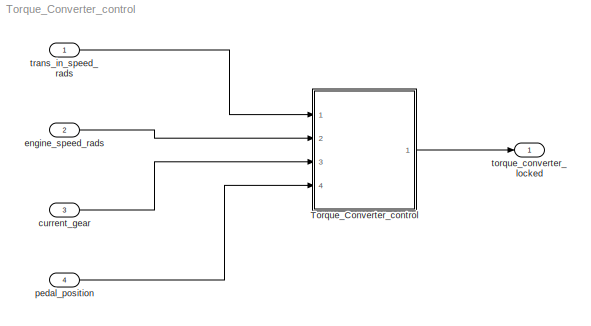
MODEL Torque_Converter_control
KIND model
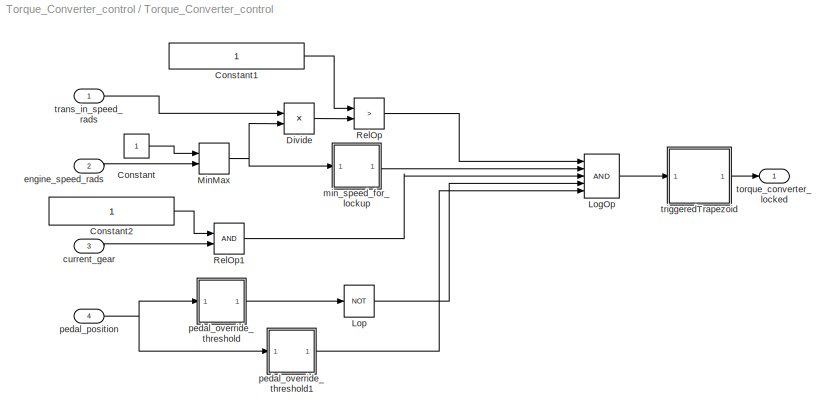
BLOCK [SubSystem] Torque_Converter_control
  FunctionWithSeparateData = off
  MaskHideContents = off
  MinAlgLoopOccurrences = off
  Opaque = off
  Ports = [4, 1]
  PropExecContextOutsideSubsystem = off
  RTWSystemCode = Auto
  RequestExecContextInheritance = off
  SID = 49
BLOCK [Constant] Torque_Converter_control/Constant
  SID = 6
BLOCK [Constant] Torque_Converter_control/Constant1
  SID = 10
BLOCK [Constant] Torque_Converter_control/Constant2
  SID = 24
BLOCK [Product] Torque_Converter_control/Divide
  InputSameDT = off
  Inputs = */
  OutDataTypeStr = Inherit: Inherit via internal rule
  Ports = [2, 1]
  RndMeth = Floor
  SID = 8
  SaturateOnIntegerOverflow = off
BLOCK [Logic] Torque_Converter_control/LogOp
  AllPortsSameDT = off
  Inputs = 5
  OutDataTypeStr = boolean
  Ports = [5, 1]
  SID = 11
BLOCK [Logic] Torque_Converter_control/Lop
  AllPortsSameDT = off
  Operator = NOT
  OutDataTypeStr = boolean
  Ports = [1, 1]
  SID = 26
BLOCK [MinMax] Torque_Converter_control/MinMax
  Function = max
  InputSameDT = off
  Inputs = 2
  Ports = [2, 1]
  SID = 7
  SaturateOnIntegerOverflow = off
BLOCK [RelationalOperator] Torque_Converter_control/RelOp
  InputSameDT = off
  Operator = >
  OutDataTypeStr = boolean
  Ports = [2, 1]
  SID = 9
BLOCK [RelationalOperator] Torque_Converter_control/RelOp1
  InputSameDT = off
  OutDataTypeStr = boolean
  Ports = [2, 1]
  SID = 25
BLOCK [Inport] Torque_Converter_control/current_gear
  IconDisplay = Port number
  OutDataTypeStr = int32
  Port = 3
  SID = 57
BLOCK [Inport] Torque_Converter_control/engine_speed_rads
  IconDisplay = Port number
  OutDataTypeStr = double
  Port = 2
  SID = 56
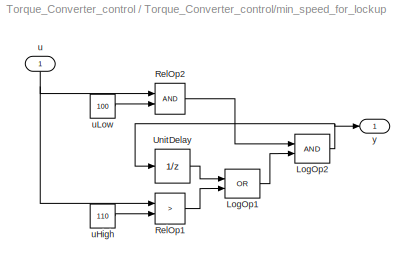
BLOCK [SubSystem] Torque_Converter_control/min_speed_for_lockup
  FunctionWithSeparateData = off
  MaskHideContents = off
  MinAlgLoopOccurrences = off
  Opaque = off
  Ports = [1, 1]
  PropExecContextOutsideSubsystem = off
  RTWSystemCode = Auto
  RequestExecContextInheritance = off
  SID = 21
BLOCK [Logic] Torque_Converter_control/min_speed_for_lockup/LogOp1
  AllPortsSameDT = off
  Operator = OR
  OutDataTypeStr = boolean
  Ports = [2, 1]
  SID = 18
BLOCK [Logic] Torque_Converter_control/min_speed_for_lockup/LogOp2
  AllPortsSameDT = off
  OutDataTypeStr = boolean
  Ports = [2, 1]
  SID = 20
BLOCK [RelationalOperator] Torque_Converter_control/min_speed_for_lockup/RelOp1
  InputSameDT = off
  Operator = >
  OutDataTypeStr = boolean
  Ports = [2, 1]
  SID = 15
BLOCK [RelationalOperator] Torque_Converter_control/min_speed_for_lockup/RelOp2
  InputSameDT = off
  OutDataTypeStr = boolean
  Ports = [2, 1]
  SID = 16
BLOCK [UnitDelay] Torque_Converter_control/min_speed_for_lockup/UnitDelay
  InputProcessing = Elements as channels (sample based)
  SID = 19
  SampleTime = -1
BLOCK [Inport] Torque_Converter_control/min_speed_for_lockup/u
  IconDisplay = Port number
  SID = 23
BLOCK [Constant] Torque_Converter_control/min_speed_for_lockup/uHigh
  SID = 13
  Value = 110
BLOCK [Constant] Torque_Converter_control/min_speed_for_lockup/uLow
  SID = 12
  Value = 100
BLOCK [Outport] Torque_Converter_control/min_speed_for_lockup/y
  IconDisplay = Port number
  SID = 22
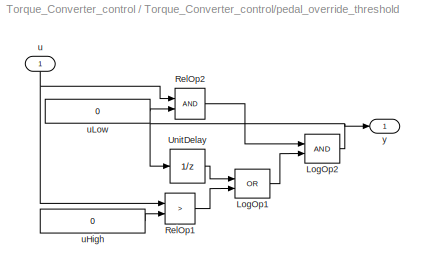
BLOCK [SubSystem] Torque_Converter_control/pedal_override_threshold
  FunctionWithSeparateData = off
  MaskHideContents = off
  MinAlgLoopOccurrences = off
  Opaque = off
  Ports = [1, 1]
  PropExecContextOutsideSubsystem = off
  RTWSystemCode = Auto
  RequestExecContextInheritance = off
  SID = 27
BLOCK [Logic] Torque_Converter_control/pedal_override_threshold/LogOp1
  AllPortsSameDT = off
  Operator = OR
  OutDataTypeStr = boolean
  Ports = [2, 1]
  SID = 29
BLOCK [Logic] Torque_Converter_control/pedal_override_threshold/LogOp2
  AllPortsSameDT = off
  OutDataTypeStr = boolean
  Ports = [2, 1]
  SID = 30
BLOCK [RelationalOperator] Torque_Converter_control/pedal_override_threshold/RelOp1
  InputSameDT = off
  Operator = >
  OutDataTypeStr = boolean
  Ports = [2, 1]
  SID = 31
BLOCK [RelationalOperator] Torque_Converter_control/pedal_override_threshold/RelOp2
  InputSameDT = off
  OutDataTypeStr = boolean
  Ports = [2, 1]
  SID = 32
BLOCK [UnitDelay] Torque_Converter_control/pedal_override_threshold/UnitDelay
  InputProcessing = Elements as channels (sample based)
  SID = 33
  SampleTime = -1
BLOCK [Inport] Torque_Converter_control/pedal_override_threshold/u
  IconDisplay = Port number
  SID = 28
BLOCK [Constant] Torque_Converter_control/pedal_override_threshold/uHigh
  SID = 34
  Value = 0
BLOCK [Constant] Torque_Converter_control/pedal_override_threshold/uLow
  SID = 35
  Value = 0
BLOCK [Outport] Torque_Converter_control/pedal_override_threshold/y
  IconDisplay = Port number
  SID = 36
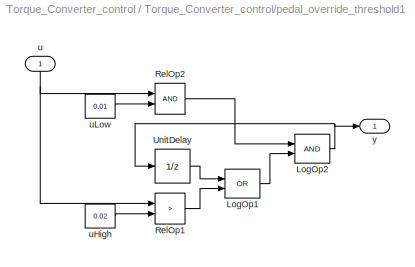
BLOCK [SubSystem] Torque_Converter_control/pedal_override_threshold1
  FunctionWithSeparateData = off
  MaskHideContents = off
  MinAlgLoopOccurrences = off
  Opaque = off
  Ports = [1, 1]
  PropExecContextOutsideSubsystem = off
  RTWSystemCode = Auto
  RequestExecContextInheritance = off
  SID = 37
BLOCK [Logic] Torque_Converter_control/pedal_override_threshold1/LogOp1
  AllPortsSameDT = off
  Operator = OR
  OutDataTypeStr = boolean
  Ports = [2, 1]
  SID = 39
BLOCK [Logic] Torque_Converter_control/pedal_override_threshold1/LogOp2
  AllPortsSameDT = off
  OutDataTypeStr = boolean
  Ports = [2, 1]
  SID = 40
BLOCK [RelationalOperator] Torque_Converter_control/pedal_override_threshold1/RelOp1
  InputSameDT = off
  Operator = >
  OutDataTypeStr = boolean
  Ports = [2, 1]
  SID = 41
BLOCK [RelationalOperator] Torque_Converter_control/pedal_override_threshold1/RelOp2
  InputSameDT = off
  OutDataTypeStr = boolean
  Ports = [2, 1]
  SID = 42
BLOCK [UnitDelay] Torque_Converter_control/pedal_override_threshold1/UnitDelay
  InputProcessing = Elements as channels (sample based)
  SID = 43
  SampleTime = -1
BLOCK [Inport] Torque_Converter_control/pedal_override_threshold1/u
  IconDisplay = Port number
  SID = 38
BLOCK [Constant] Torque_Converter_control/pedal_override_threshold1/uHigh
  SID = 44
  Value = 0.02
BLOCK [Constant] Torque_Converter_control/pedal_override_threshold1/uLow
  SID = 45
  Value = 0.01
BLOCK [Outport] Torque_Converter_control/pedal_override_threshold1/y
  IconDisplay = Port number
  SID = 46
BLOCK [Inport] Torque_Converter_control/pedal_position
  IconDisplay = Port number
  OutDataTypeStr = double
  Port = 4
  SID = 58
BLOCK [Outport] Torque_Converter_control/torque_converter_locked
  IconDisplay = Port number
  OutDataTypeStr = double
  SID = 59
BLOCK [Inport] Torque_Converter_control/trans_in_speed_rads
  IconDisplay = Port number
  OutDataTypeStr = double
  SID = 55
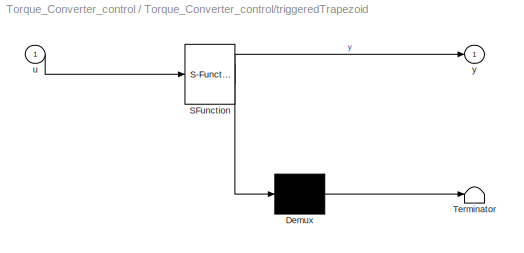
BLOCK [SubSystem] Torque_Converter_control/triggeredTrapezoid
  ErrorFcn = Stateflow.Translate.translate
  FunctionWithSeparateData = off
  MaskHideContents = off
  MinAlgLoopOccurrences = off
  Opaque = off
  PermitHierarchicalResolution = ExplicitOnly
  Ports = [1, 1]
  PropExecContextOutsideSubsystem = off
  RTWSystemCode = Auto
  RequestExecContextInheritance = off
  SFBlockType = Chart
  SID = 47
  TreatAsAtomicUnit = on
BLOCK [Demux] Torque_Converter_control/triggeredTrapezoid/ Demux 
  Outputs = 1
  Ports = [1, 1]
  SID = 47::36
BLOCK [S-Function] Torque_Converter_control/triggeredTrapezoid/ SFunction 
  EnableBusSupport = off
  FunctionName = sf_sfun
  PortCounts = [1 2]
  Ports = [1, 2]
  SID = 47::35
  Tag = Stateflow S-Function Torque_Converter_control 1
BLOCK [Terminator] Torque_Converter_control/triggeredTrapezoid/ Terminator 
  SID = 47::37
BLOCK [Inport] Torque_Converter_control/triggeredTrapezoid/u
  IconDisplay = Port number
  SID = 47::29
BLOCK [Outport] Torque_Converter_control/triggeredTrapezoid/y
  IconDisplay = Port number
  SID = 47::31
BLOCK [Inport] current_gear
  IconDisplay = Port number
  OutDataTypeStr = int32
  Port = 3
  SID = 3
BLOCK [Inport] engine_speed_rads
  IconDisplay = Port number
  OutDataTypeStr = double
  Port = 2
  SID = 2
BLOCK [Inport] pedal_position
  IconDisplay = Port number
  OutDataTypeStr = double
  Port = 4
  SID = 4
BLOCK [Outport] torque_converter_locked
  IconDisplay = Port number
  OutDataTypeStr = double
  SID = 5
BLOCK [Inport] trans_in_speed_rads
  IconDisplay = Port number
  OutDataTypeStr = double
  SID = 1
LINE Torque_Converter_control/Constant1:1 -> Torque_Converter_control/RelOp:1
LINE Torque_Converter_control/Constant2:1 -> Torque_Converter_control/RelOp1:1
LINE Torque_Converter_control/Constant:1 -> Torque_Converter_control/MinMax:1
LINE Torque_Converter_control/Divide:1 -> Torque_Converter_control/RelOp:2
LINE Torque_Converter_control/LogOp:1 -> Torque_Converter_control/triggeredTrapezoid:1
LINE Torque_Converter_control/Lop:1 -> Torque_Converter_control/LogOp:4
NET Torque_Converter_control/MinMax:1 -> Torque_Converter_control/Divide:2, Torque_Converter_control/min_speed_for_lockup:1
LINE Torque_Converter_control/RelOp1:1 -> Torque_Converter_control/LogOp:3
LINE Torque_Converter_control/RelOp:1 -> Torque_Converter_control/LogOp:1
LINE Torque_Converter_control/current_gear:1 -> Torque_Converter_control/RelOp1:2
LINE Torque_Converter_control/engine_speed_rads:1 -> Torque_Converter_control/MinMax:2
LINE Torque_Converter_control/min_speed_for_lockup/LogOp1:1 -> Torque_Converter_control/min_speed_for_lockup/LogOp2:2
NET Torque_Converter_control/min_speed_for_lockup/LogOp2:1 -> Torque_Converter_control/min_speed_for_lockup/UnitDelay:1, Torque_Converter_control/min_speed_for_lockup/y:1
LINE Torque_Converter_control/min_speed_for_lockup/RelOp1:1 -> Torque_Converter_control/min_speed_for_lockup/LogOp1:2
LINE Torque_Converter_control/min_speed_for_lockup/RelOp2:1 -> Torque_Converter_control/min_speed_for_lockup/LogOp2:1
LINE Torque_Converter_control/min_speed_for_lockup/UnitDelay:1 -> Torque_Converter_control/min_speed_for_lockup/LogOp1:1
NET Torque_Converter_control/min_speed_for_lockup/u:1 -> Torque_Converter_control/min_speed_for_lockup/RelOp1:1, Torque_Converter_control/min_speed_for_lockup/RelOp2:1
LINE Torque_Converter_control/min_speed_for_lockup/uHigh:1 -> Torque_Converter_control/min_speed_for_lockup/RelOp1:2
LINE Torque_Converter_control/min_speed_for_lockup/uLow:1 -> Torque_Converter_control/min_speed_for_lockup/RelOp2:2
LINE Torque_Converter_control/min_speed_for_lockup:1 -> Torque_Converter_control/LogOp:2
LINE Torque_Converter_control/pedal_override_threshold/LogOp1:1 -> Torque_Converter_control/pedal_override_threshold/LogOp2:2
NET Torque_Converter_control/pedal_override_threshold/LogOp2:1 -> Torque_Converter_control/pedal_override_threshold/UnitDelay:1, Torque_Converter_control/pedal_override_threshold/y:1
LINE Torque_Converter_control/pedal_override_threshold/RelOp1:1 -> Torque_Converter_control/pedal_override_threshold/LogOp1:2
LINE Torque_Converter_control/pedal_override_threshold/RelOp2:1 -> Torque_Converter_control/pedal_override_threshold/LogOp2:1
LINE Torque_Converter_control/pedal_override_threshold/UnitDelay:1 -> Torque_Converter_control/pedal_override_threshold/LogOp1:1
NET Torque_Converter_control/pedal_override_threshold/u:1 -> Torque_Converter_control/pedal_override_threshold/RelOp1:1, Torque_Converter_control/pedal_override_threshold/RelOp2:1
LINE Torque_Converter_control/pedal_override_threshold/uHigh:1 -> Torque_Converter_control/pedal_override_threshold/RelOp1:2
LINE Torque_Converter_control/pedal_override_threshold/uLow:1 -> Torque_Converter_control/pedal_override_threshold/RelOp2:2
LINE Torque_Converter_control/pedal_override_threshold1/LogOp1:1 -> Torque_Converter_control/pedal_override_threshold1/LogOp2:2
NET Torque_Converter_control/pedal_override_threshold1/LogOp2:1 -> Torque_Converter_control/pedal_override_threshold1/UnitDelay:1, Torque_Converter_control/pedal_override_threshold1/y:1
LINE Torque_Converter_control/pedal_override_threshold1/RelOp1:1 -> Torque_Converter_control/pedal_override_threshold1/LogOp1:2
LINE Torque_Converter_control/pedal_override_threshold1/RelOp2:1 -> Torque_Converter_control/pedal_override_threshold1/LogOp2:1
LINE Torque_Converter_control/pedal_override_threshold1/UnitDelay:1 -> Torque_Converter_control/pedal_override_threshold1/LogOp1:1
NET Torque_Converter_control/pedal_override_threshold1/u:1 -> Torque_Converter_control/pedal_override_threshold1/RelOp1:1, Torque_Converter_control/pedal_override_threshold1/RelOp2:1
LINE Torque_Converter_control/pedal_override_threshold1/uHigh:1 -> Torque_Converter_control/pedal_override_threshold1/RelOp1:2
LINE Torque_Converter_control/pedal_override_threshold1/uLow:1 -> Torque_Converter_control/pedal_override_threshold1/RelOp2:2
LINE Torque_Converter_control/pedal_override_threshold1:1 -> Torque_Converter_control/LogOp:5
LINE Torque_Converter_control/pedal_override_threshold:1 -> Torque_Converter_control/Lop:1
NET Torque_Converter_control/pedal_position:1 -> Torque_Converter_control/pedal_override_threshold1:1, Torque_Converter_control/pedal_override_threshold:1
LINE Torque_Converter_control/trans_in_speed_rads:1 -> Torque_Converter_control/Divide:1
LINE Torque_Converter_control/triggeredTrapezoid/ Demux :1 -> Torque_Converter_control/triggeredTrapezoid/ Terminator :1
LINE Torque_Converter_control/triggeredTrapezoid/ SFunction :1 -> Torque_Converter_control/triggeredTrapezoid/ Demux :1
LINE Torque_Converter_control/triggeredTrapezoid/ SFunction :2 -> Torque_Converter_control/triggeredTrapezoid/y:1
LINE Torque_Converter_control/triggeredTrapezoid/u:1 -> Torque_Converter_control/triggeredTrapezoid/ SFunction :1
LINE Torque_Converter_control/triggeredTrapezoid:1 -> Torque_Converter_control/torque_converter_locked:1
LINE Torque_Converter_control:1 -> torque_converter_locked:1
LINE current_gear:1 -> Torque_Converter_control:3
LINE engine_speed_rads:1 -> Torque_Converter_control:2
LINE pedal_position:1 -> Torque_Converter_control:4
LINE trans_in_speed_rads:1 -> Torque_Converter_control:1
note: NET lines group one-source signal fan-out (src -> all destinations, sorted); 1:1 wires keep LINE
CHART Torque_Converter_control/triggeredTrapezoid states=4 transitions=7
  STATE_LABEL 'Low\\nentry: y = offset;'
  STATE_LABEL 'Rising\\nduring: y = y + rise_step;'
  STATE_LABEL 'Falling\\nduring: y = y - fall_step;'
  STATE_LABEL 'High\\nentry: y = amplitude+offset;'
